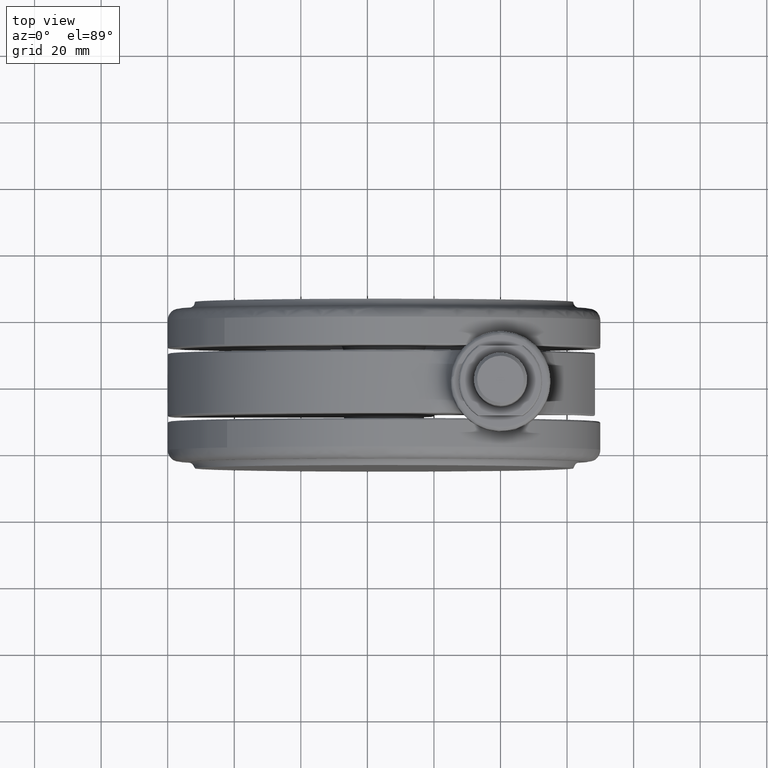
[diagram: clean part render]
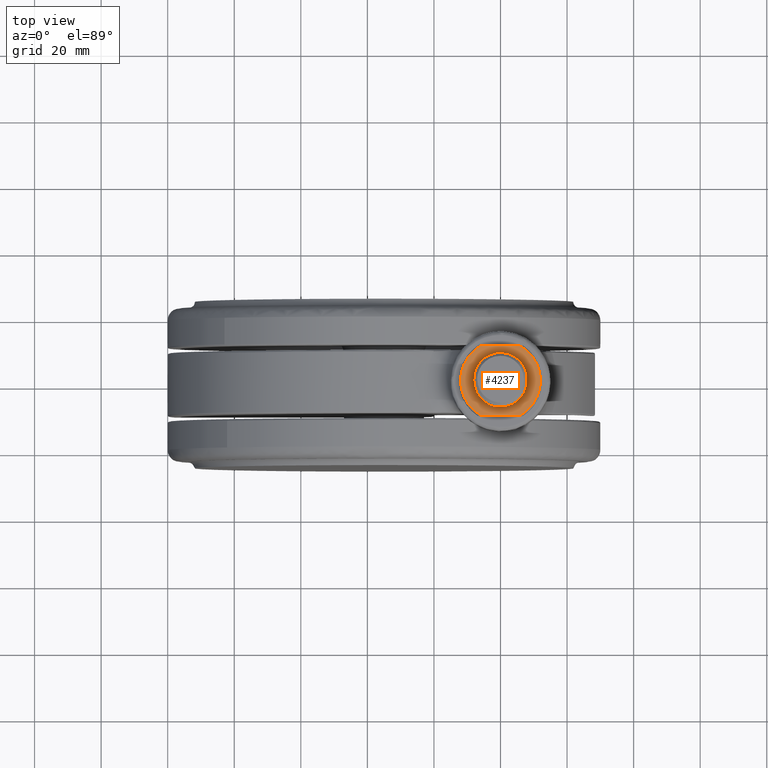
[diagram: same view with one face highlighted and labeled with its STEP entity id]
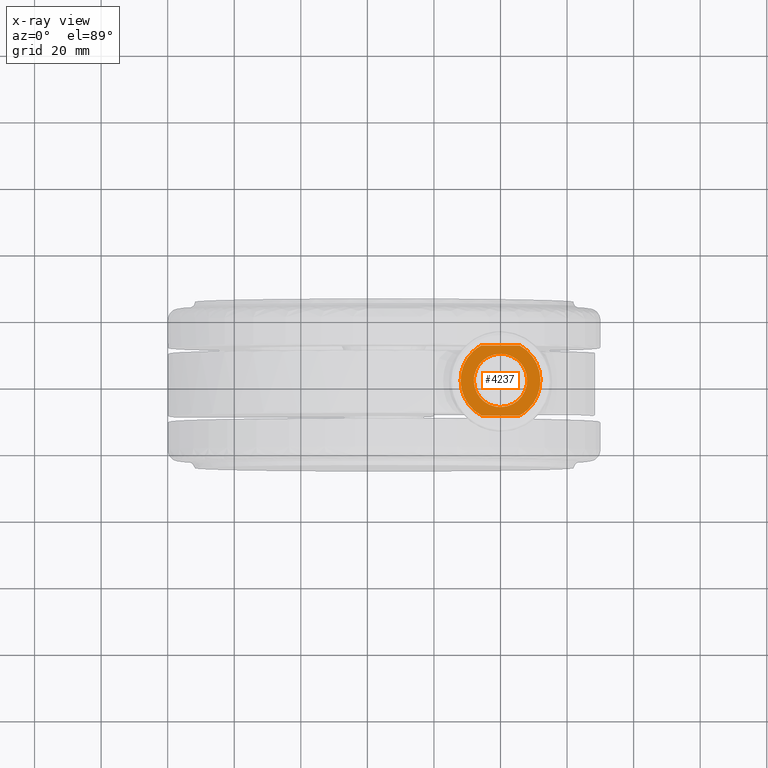
[diagram: x-ray of the same camera — body ghosted, the highlighted face saturated]
A machine part, top view. The second image highlights one B-rep face of the part: STEP entity #4237.
The next image is the same camera in x-ray: the body ghosted, the highlighted face saturated — about 0% of this face is hidden behind the body in this view.
In plain terms, the highlighted face is a freeform B-spline surface patch.
Its self-contained STEP definition (entity closure, byte-faithful):
#3679=CARTESIAN_POINT('',(0.069812284527828,7.999695384508648,8.500000000000000));
#3680=VERTEX_POINT('',#3679);
#3686=CARTESIAN_POINT('',(-8.000000000000227,0.0,8.500000000000000));
#3687=VERTEX_POINT('',#3686);
#3688=CARTESIAN_POINT('',(0.069812284527828,7.999695384508649,8.500000000000000));
#3689=CARTESIAN_POINT('',(0.034906806835932,8.0,8.500000000000000));
#3690=CARTESIAN_POINT('',(-2.273737E-013,8.0,8.500000000000000));
#3691=CARTESIAN_POINT('',(-8.000000000000227,8.0,8.500000000000002));
#3692=CARTESIAN_POINT('',(-8.000000000000227,0.0,8.500000000000000));
#3700=(BOUNDED_CURVE()B_SPLINE_CURVE(2,(#3688,#3689,#3690,#3691,#3692),.UNSPECIFIED.,.F.,.U.)B_SPLINE_CURVE_WITH_KNOTS((3,2,3),(0.248460105653099,0.250000000000000,0.500000000000000),.UNSPECIFIED.)CURVE()GEOMETRIC_REPRESENTATION_ITEM()RATIONAL_B_SPLINE_CURVE((0.996414028072835,0.998195901552415,1.0,0.707106781186548,1.0))REPRESENTATION_ITEM(''));
#3701=EDGE_CURVE('',#3680,#3687,#3700,.T.);
#3703=CARTESIAN_POINT('',(-0.069812284528284,-7.999695384508647,8.500000000000000));
#3704=VERTEX_POINT('',#3703);
#3705=CARTESIAN_POINT('',(-8.000000000000227,0.0,8.500000000000000));
#3706=CARTESIAN_POINT('',(-8.000000000000227,-7.930489684223423,8.500000000000000));
#3707=CARTESIAN_POINT('',(-0.069812284528281,-7.999695384508649,8.500000000000000));
#3715=(BOUNDED_CURVE()B_SPLINE_CURVE(2,(#3705,#3706,#3707),.UNSPECIFIED.,.F.,.U.)B_SPLINE_CURVE_WITH_KNOTS((3,3),(0.500000000000000,0.748460105653099),.UNSPECIFIED.)CURVE()GEOMETRIC_REPRESENTATION_ITEM()RATIONAL_B_SPLINE_CURVE((1.0,0.708910879634133,0.996414028072835))REPRESENTATION_ITEM(''));
#3716=EDGE_CURVE('',#3687,#3704,#3715,.T.);
#3746=CARTESIAN_POINT('',(7.999999999999773,0.0,8.500000000000000));
#3747=VERTEX_POINT('',#3746);
#3748=CARTESIAN_POINT('',(-0.069812284528281,-7.999695384508649,8.500000000000000));
#3749=CARTESIAN_POINT('',(-0.034906806836387,-8.0,8.500000000000000));
#3750=CARTESIAN_POINT('',(-2.273737E-013,-8.0,8.500000000000000));
#3751=CARTESIAN_POINT('',(7.999999999999773,-8.0,8.500000000000002));
#3752=CARTESIAN_POINT('',(7.999999999999773,0.0,8.500000000000000));
#3760=(BOUNDED_CURVE()B_SPLINE_CURVE(2,(#3748,#3749,#3750,#3751,#3752),.UNSPECIFIED.,.F.,.U.)B_SPLINE_CURVE_WITH_KNOTS((3,2,3),(0.748460105653099,0.750000000000000,1.0),.UNSPECIFIED.)CURVE()GEOMETRIC_REPRESENTATION_ITEM()RATIONAL_B_SPLINE_CURVE((0.996414028072835,0.998195901552415,1.0,0.707106781186548,1.0))REPRESENTATION_ITEM(''));
#3761=EDGE_CURVE('',#3704,#3747,#3760,.T.);
#3763=CARTESIAN_POINT('',(7.999999999999773,0.0,8.500000000000000));
#3764=CARTESIAN_POINT('',(7.999999999999774,7.930489684223422,8.500000000000000));
#3765=CARTESIAN_POINT('',(0.069812284527828,7.999695384508649,8.500000000000000));
#3773=(BOUNDED_CURVE()B_SPLINE_CURVE(2,(#3763,#3764,#3765),.UNSPECIFIED.,.F.,.U.)B_SPLINE_CURVE_WITH_KNOTS((3,3),(0.0,0.248460105653099),.UNSPECIFIED.)CURVE()GEOMETRIC_REPRESENTATION_ITEM()RATIONAL_B_SPLINE_CURVE((1.0,0.708910879634133,0.996414028072835))REPRESENTATION_ITEM(''));
#3774=EDGE_CURVE('',#3747,#3680,#3773,.T.);
#3806=CARTESIAN_POINT('',(5.809475019310709,-10.500000000000000,8.500000000000000));
#3807=VERTEX_POINT('',#3806);
#3849=CARTESIAN_POINT('',(5.809475019310599,10.500000000000000,8.500000000000000));
#3850=VERTEX_POINT('',#3849);
#3876=CARTESIAN_POINT('',(5.809475019310599,10.500000000000000,8.500000000000000));
#3877=CARTESIAN_POINT('',(6.683590762501304,10.016647876037331,8.500000000000002));
#3878=CARTESIAN_POINT('',(8.228567518133476,8.889190972715618,8.499999999999993));
#3879=CARTESIAN_POINT('',(9.918910543071673,6.895999693264939,8.499999999999984));
#3880=CARTESIAN_POINT('',(11.031707907953111,4.876040390900345,8.500000000000030));
#3881=CARTESIAN_POINT('',(11.657593488504990,3.041381752017321,8.500000000000048));
#3882=CARTESIAN_POINT('',(12.017452261632990,1.004065130937544,8.499999999999965));
#3883=CARTESIAN_POINT('',(12.026106245322600,-1.071337879304817,8.500000000000007));
#3884=CARTESIAN_POINT('',(11.621550163838060,-3.205794504272445,8.500000000000020));
#3885=CARTESIAN_POINT('',(10.857971588180980,-5.273708987996383,8.499999999999945));
#3886=CARTESIAN_POINT('',(9.685112038557385,-7.225817348371630,8.500000000000153));
#3887=CARTESIAN_POINT('',(7.961644715295036,-9.094430126343641,8.499999999999705));
#3888=CARTESIAN_POINT('',(6.596142679241758,-10.064930582117411,8.500000000000362));
#3889=CARTESIAN_POINT('',(5.809475019310709,-10.500000000000000,8.500000000000000));
#3890=B_SPLINE_CURVE_WITH_KNOTS('',3,(#3876,#3877,#3878,#3879,#3880,#3881,#3882,#3883,#3884,#3885,#3886,#3887,#3888,#3889),.UNSPECIFIED.,.F.,.U.,(4,1,1,1,1,1,1,1,1,1,1,4),(0.000000284231348,2.996498074657197,5.693439291260731,7.791041365097755,9.888662215709832,11.486770225936640,13.983805573440200,16.081423607024121,17.979277059956900,20.576294512461299,22.873684652923568,25.570533412351718),.UNSPECIFIED.);
#3891=EDGE_CURVE('',#3850,#3807,#3890,.T.);
#3987=CARTESIAN_POINT('',(-5.809475019310820,-10.500000000000000,8.500000000000000));
#3988=VERTEX_POINT('',#3987);
#4016=CARTESIAN_POINT('',(-5.809475019310719,10.500000000000000,8.500000000000000));
#4017=VERTEX_POINT('',#4016);
#4018=CARTESIAN_POINT('',(-5.809475019310820,-10.500000000000000,8.500000000000000));
#4019=CARTESIAN_POINT('',(-6.683596896180945,-10.016657228598740,8.499999999999975));
#4020=CARTESIAN_POINT('',(-8.065882382518145,-9.007817299496196,8.500000000000023));
#4021=CARTESIAN_POINT('',(-9.667616193200402,-7.211906260728104,8.499999999999998));
#4022=CARTESIAN_POINT('',(-10.651491085113520,-5.619704323320808,8.500000000000021));
#4023=CARTESIAN_POINT('',(-11.471799302126140,-3.721544435198016,8.500000000000007));
#4024=CARTESIAN_POINT('',(-11.944205109125370,-1.767567923146053,8.499999999999989));
#4025=CARTESIAN_POINT('',(-12.049582637252341,0.534572206072479,8.500000000000034));
#4026=CARTESIAN_POINT('',(-11.761379901498049,2.756954091548126,8.499999999999982));
#4027=CARTESIAN_POINT('',(-11.047920629722389,4.847984638781714,8.500000000000007));
#4028=CARTESIAN_POINT('',(-10.073792698167299,6.598538399868867,8.499999999999996));
#4029=CARTESIAN_POINT('',(-8.876707867361658,8.162282149766295,8.500000000000080));
#4030=CARTESIAN_POINT('',(-7.452385700279551,9.480518586539629,8.499999999999814));
#4031=CARTESIAN_POINT('',(-6.304735056668608,10.225991985162651,8.499999999999950));
#4032=CARTESIAN_POINT('',(-5.809475019310719,10.500000000000000,8.500000000000000));
#4033=B_SPLINE_CURVE_WITH_KNOTS('',3,(#4018,#4019,#4020,#4021,#4022,#4023,#4024,#4025,#4026,#4027,#4028,#4029,#4030,#4031,#4032),.UNSPECIFIED.,.F.,.U.,(4,1,1,1,1,1,1,1,1,1,1,1,4),(0.000000284287616,2.996498074707461,5.094128930127432,7.191725794812740,8.590122186024839,11.287017787237470,13.184758383049360,15.482115594183860,17.979277059973970,19.777210727786539,21.475290198078451,23.872501346595271,25.570533412351491),.UNSPECIFIED.);
#4034=EDGE_CURVE('',#3988,#4017,#4033,.T.);
#4212=CARTESIAN_POINT('',(-13.198799953483180,-11.548949959297930,8.500000000000000));
#4213=CARTESIAN_POINT('',(13.198800597213230,-11.548949959297930,8.500000000000000));
#4214=CARTESIAN_POINT('',(-13.198799953483180,11.548950522561819,8.500000000000000));
#4215=CARTESIAN_POINT('',(13.198800597213230,11.548950522561819,8.500000000000000));
#4216=B_SPLINE_SURFACE_WITH_KNOTS('',1,1,((#4212,#4214),(#4213,#4215)),.UNSPECIFIED.,.F.,.F.,.U.,(2,2),(2,2),(0.0,26.397600550696410),(0.0,23.097900481859750),.UNSPECIFIED.);
#4217=CARTESIAN_POINT('',(5.809475019310709,-10.500000000000000,8.500000000000000));
#4218=CARTESIAN_POINT('',(-5.809475019310820,-10.500000000000000,8.500000000000000));
#4219=QUASI_UNIFORM_CURVE('',1,(#4217,#4218),.UNSPECIFIED.,.F.,.U.);
#4220=EDGE_CURVE('',#3807,#3988,#4219,.T.);
#4221=ORIENTED_EDGE('',*,*,#4220,.F.);
#4222=ORIENTED_EDGE('',*,*,#3891,.F.);
#4223=CARTESIAN_POINT('',(-5.809475019310719,10.500000000000000,8.500000000000000));
#4224=CARTESIAN_POINT('',(5.809475019310599,10.500000000000000,8.500000000000000));
#4225=QUASI_UNIFORM_CURVE('',1,(#4223,#4224),.UNSPECIFIED.,.F.,.U.);
#4226=EDGE_CURVE('',#4017,#3850,#4225,.T.);
#4227=ORIENTED_EDGE('',*,*,#4226,.F.);
#4228=ORIENTED_EDGE('',*,*,#4034,.F.);
#4229=EDGE_LOOP('',(#4221,#4222,#4227,#4228));
#4230=FACE_OUTER_BOUND('',#4229,.T.);
#4231=ORIENTED_EDGE('',*,*,#3774,.F.);
#4232=ORIENTED_EDGE('',*,*,#3761,.F.);
#4233=ORIENTED_EDGE('',*,*,#3716,.F.);
#4234=ORIENTED_EDGE('',*,*,#3701,.F.);
#4235=EDGE_LOOP('',(#4231,#4232,#4233,#4234));
#4236=FACE_BOUND('',#4235,.T.);
#4237=ADVANCED_FACE('',(#4230,#4236),#4216,.T.);